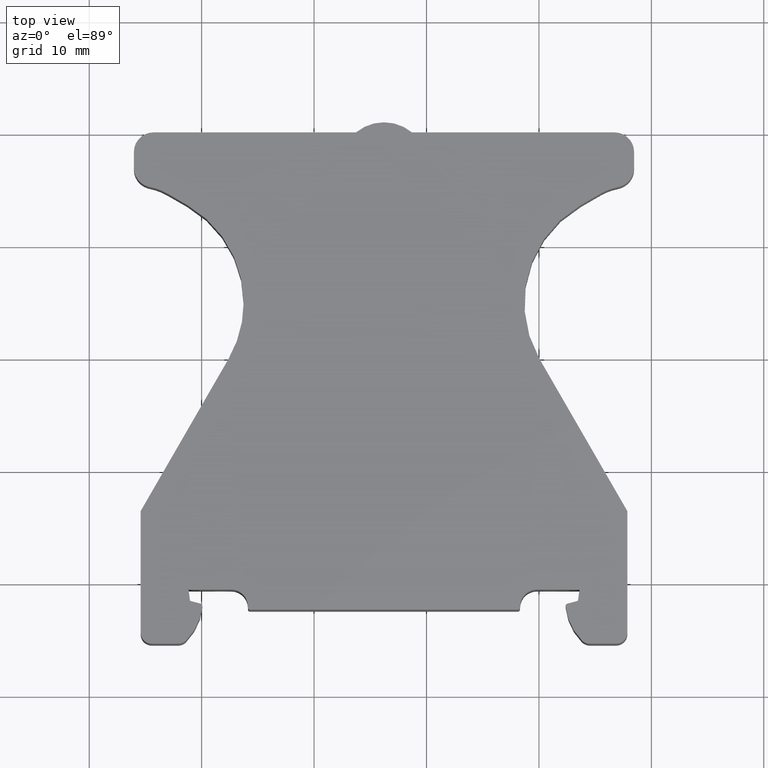
[diagram: clean part render]
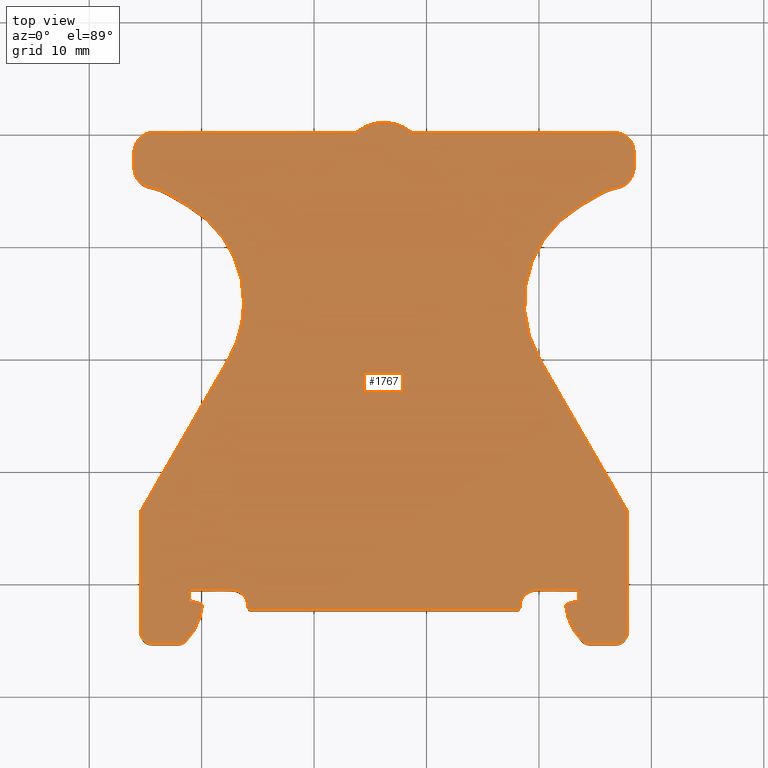
[diagram: same view with one face highlighted and labeled with its STEP entity id]
A machine part, top view. The second image highlights one B-rep face of the part: STEP entity #1767.
In plain terms, the highlighted planar face has unit normal (0, 0, 1).
Its self-contained STEP definition (entity closure, byte-faithful):
#1 = CARTESIAN_POINT ( 'NONE',  ( 1758.969868390070100, 548.3941624297320900, 10.00000000000000000 ) ) ;
#2 = CARTESIAN_POINT ( 'NONE',  ( 1792.523368370729700, 548.1405663962840400, 10.00000000000000000 ) ) ;
#4 = CARTESIAN_POINT ( 'NONE',  ( 1793.606425861842100, 549.3941131315810900, 10.00000000000000000 ) ) ;
#6 = CARTESIAN_POINT ( 'NONE',  ( 1760.063687518259900, 547.9282140013140200, 10.00000000000000000 ) ) ;
#7 = CARTESIAN_POINT ( 'NONE',  ( 1794.531527963769800, 544.5720436728439600, 10.00000000000000000 ) ) ;
#8 = CARTESIAN_POINT ( 'NONE',  ( 1762.619791743365100, 549.3941690927810000, 10.00000000000000000 ) ) ;
#9 = CARTESIAN_POINT ( 'NONE',  ( 1757.908208816370000, 544.5720436728439600, 10.00000000000000000 ) ) ;
#11 = CARTESIAN_POINT ( 'NONE',  ( 1753.969868390069900, 588.3165154542080000, 10.00000000000000000 ) ) ;
#12 = CARTESIAN_POINT ( 'NONE',  ( 1793.469868390070100, 548.3941624297320900, 10.00000000000000000 ) ) ;
#13 = CARTESIAN_POINT ( 'NONE',  ( 1796.869850691134800, 544.5720436728429400, 10.00000000000000000 ) ) ;
#17 = CARTESIAN_POINT ( 'NONE',  ( 1792.375128774348000, 547.9473803185910600, 10.00000000000000000 ) ) ;
#19 = CARTESIAN_POINT ( 'NONE',  ( 1755.569886089010000, 544.5720436728429400, 10.00000000000000000 ) ) ;
#20 = CARTESIAN_POINT ( 'NONE',  ( 1773.727881231209700, 590.0665154542080000, 10.00000000000000000 ) ) ;
#24 = CARTESIAN_POINT ( 'NONE',  ( 1797.232615314785300, 585.2433177398911500, 10.00000000000000000 ) ) ;
#25 = CARTESIAN_POINT ( 'NONE',  ( 1754.569886089005200, 545.5720436728429400, 10.00000000000000000 ) ) ;
#26 = CARTESIAN_POINT ( 'NONE',  ( 1788.319825420455100, 547.8941690943850100, 10.00000000000000000 ) ) ;
#29 = CARTESIAN_POINT ( 'NONE',  ( 1788.319825420455100, 547.7941596898959900, 10.00000000000000000 ) ) ;
#30 = CARTESIAN_POINT ( 'NONE',  ( 1764.319813912180100, 547.5941596898959500, 10.00000000000000000 ) ) ;
#33 = CARTESIAN_POINT ( 'NONE',  ( 1754.569886089005200, 556.3710689303485400, 10.00000000000000000 ) ) ;
#37 = CARTESIAN_POINT ( 'NONE',  ( 1798.469868390069900, 588.3165154542080000, 10.00000000000000000 ) ) ;
#38 = CARTESIAN_POINT ( 'NONE',  ( 1797.869850691135100, 556.3710689303579800, 10.00000000000000000 ) ) ;
#39 = CARTESIAN_POINT ( 'NONE',  ( 1788.119825420455100, 547.5941596898959500, 10.00000000000000000 ) ) ;
#44 = CARTESIAN_POINT ( 'NONE',  ( 1755.389281030210000, 585.1980242562377700, 10.00000000000000000 ) ) ;
#46 = CARTESIAN_POINT ( 'NONE',  ( 1764.119813912180000, 547.8941690929449400, 10.00000000000000000 ) ) ;
#47 = CARTESIAN_POINT ( 'NONE',  ( 1755.284639089905100, 585.2215005704152900, 10.00000000000000000 ) ) ;
#48 = CARTESIAN_POINT ( 'NONE',  ( 1753.969868390069900, 586.9165154542080200, 10.00000000000000000 ) ) ;
#51 = CARTESIAN_POINT ( 'NONE',  ( 1758.613586093785000, 544.8632116077490100, 10.00000000000000000 ) ) ;
#53 = CARTESIAN_POINT ( 'NONE',  ( 1789.819847589275000, 549.3941690942209600, 10.00000000000000000 ) ) ;
#54 = CARTESIAN_POINT ( 'NONE',  ( 1759.916370373820200, 548.1405658699590000, 10.00000000000000000 ) ) ;
#59 = CARTESIAN_POINT ( 'NONE',  ( 1793.826150686354800, 544.8632116077479800, 10.00000000000000000 ) ) ;
#61 = CARTESIAN_POINT ( 'NONE',  ( 1796.719868390070100, 590.0665154542080000, 10.00000000000000000 ) ) ;
#64 = CARTESIAN_POINT ( 'NONE',  ( 1755.719868390069900, 590.0665154542080000, 10.00000000000000000 ) ) ;
#99 = EDGE_LOOP ( 'NONE', ( #299, #207, #250, #249, #235, #255, #227, #308, #287, #306, #252, #265, #311, #198, #276, #244, #191, #236, #195, #302, #238, #215, #202, #222, #194, #196, #248, #204, #275, #213, #241, #209, #197, #225, #233, #216, #217, #296, #290, #289, #312, #355, #271, #369, #379, #370, #372, #349 ) ) ;
#191 = ORIENTED_EDGE ( 'NONE', *, *, #867, .T. ) ;
#194 = ORIENTED_EDGE ( 'NONE', *, *, #863, .T. ) ;
#195 = ORIENTED_EDGE ( 'NONE', *, *, #839, .F. ) ;
#196 = ORIENTED_EDGE ( 'NONE', *, *, #894, .T. ) ;
#197 = ORIENTED_EDGE ( 'NONE', *, *, #868, .T. ) ;
#198 = ORIENTED_EDGE ( 'NONE', *, *, #950, .T. ) ;
#202 = ORIENTED_EDGE ( 'NONE', *, *, #865, .T. ) ;
#204 = ORIENTED_EDGE ( 'NONE', *, *, #821, .T. ) ;
#207 = ORIENTED_EDGE ( 'NONE', *, *, #864, .T. ) ;
#209 = ORIENTED_EDGE ( 'NONE', *, *, #822, .T. ) ;
#213 = ORIENTED_EDGE ( 'NONE', *, *, #853, .T. ) ;
#215 = ORIENTED_EDGE ( 'NONE', *, *, #927, .F. ) ;
#216 = ORIENTED_EDGE ( 'NONE', *, *, #825, .T. ) ;
#217 = ORIENTED_EDGE ( 'NONE', *, *, #891, .T. ) ;
#222 = ORIENTED_EDGE ( 'NONE', *, *, #840, .T. ) ;
#225 = ORIENTED_EDGE ( 'NONE', *, *, #828, .T. ) ;
#227 = ORIENTED_EDGE ( 'NONE', *, *, #842, .T. ) ;
#233 = ORIENTED_EDGE ( 'NONE', *, *, #870, .T. ) ;
#235 = ORIENTED_EDGE ( 'NONE', *, *, #883, .F. ) ;
#236 = ORIENTED_EDGE ( 'NONE', *, *, #996, .T. ) ;
#238 = ORIENTED_EDGE ( 'NONE', *, *, #934, .F. ) ;
#241 = ORIENTED_EDGE ( 'NONE', *, *, #887, .T. ) ;
#244 = ORIENTED_EDGE ( 'NONE', *, *, #817, .T. ) ;
#248 = ORIENTED_EDGE ( 'NONE', *, *, #860, .T. ) ;
#249 = ORIENTED_EDGE ( 'NONE', *, *, #931, .T. ) ;
#250 = ORIENTED_EDGE ( 'NONE', *, *, #911, .F. ) ;
#252 = ORIENTED_EDGE ( 'NONE', *, *, #974, .T. ) ;
#255 = ORIENTED_EDGE ( 'NONE', *, *, #979, .T. ) ;
#265 = ORIENTED_EDGE ( 'NONE', *, *, #871, .T. ) ;
#271 = ORIENTED_EDGE ( 'NONE', *, *, #824, .T. ) ;
#275 = ORIENTED_EDGE ( 'NONE', *, *, #826, .T. ) ;
#276 = ORIENTED_EDGE ( 'NONE', *, *, #963, .T. ) ;
#287 = ORIENTED_EDGE ( 'NONE', *, *, #999, .T. ) ;
#289 = ORIENTED_EDGE ( 'NONE', *, *, #836, .T. ) ;
#290 = ORIENTED_EDGE ( 'NONE', *, *, #835, .T. ) ;
#296 = ORIENTED_EDGE ( 'NONE', *, *, #880, .T. ) ;
#299 = ORIENTED_EDGE ( 'NONE', *, *, #885, .T. ) ;
#302 = ORIENTED_EDGE ( 'NONE', *, *, #939, .T. ) ;
#306 = ORIENTED_EDGE ( 'NONE', *, *, #970, .T. ) ;
#308 = ORIENTED_EDGE ( 'NONE', *, *, #1002, .T. ) ;
#311 = ORIENTED_EDGE ( 'NONE', *, *, #955, .T. ) ;
#312 = ORIENTED_EDGE ( 'NONE', *, *, #823, .T. ) ;
#349 = ORIENTED_EDGE ( 'NONE', *, *, #861, .T. ) ;
#355 = ORIENTED_EDGE ( 'NONE', *, *, #882, .T. ) ;
#369 = ORIENTED_EDGE ( 'NONE', *, *, #925, .T. ) ;
#370 = ORIENTED_EDGE ( 'NONE', *, *, #892, .T. ) ;
#372 = ORIENTED_EDGE ( 'NONE', *, *, #878, .T. ) ;
#379 = ORIENTED_EDGE ( 'NONE', *, *, #841, .T. ) ;
#385 = VERTEX_POINT ( 'NONE', #513 ) ;
#386 = VERTEX_POINT ( 'NONE', #532 ) ;
#391 = VERTEX_POINT ( 'NONE', #547 ) ;
#392 = VERTEX_POINT ( 'NONE', #537 ) ;
#396 = VERTEX_POINT ( 'NONE', #530 ) ;
#405 = VERTEX_POINT ( 'NONE', #549 ) ;
#406 = VERTEX_POINT ( 'NONE', #542 ) ;
#408 = VERTEX_POINT ( 'NONE', #531 ) ;
#409 = VERTEX_POINT ( 'NONE', #526 ) ;
#420 = VERTEX_POINT ( 'NONE', #517 ) ;
#426 = VERTEX_POINT ( 'NONE', #509 ) ;
#428 = VERTEX_POINT ( 'NONE', #534 ) ;
#432 = VERTEX_POINT ( 'NONE', #512 ) ;
#433 = VERTEX_POINT ( 'NONE', #518 ) ;
#445 = VERTEX_POINT ( 'NONE', #522 ) ;
#446 = VERTEX_POINT ( 'NONE', #523 ) ;
#450 = VERTEX_POINT ( 'NONE', #11 ) ;
#454 = VERTEX_POINT ( 'NONE', #1 ) ;
#455 = VERTEX_POINT ( 'NONE', #2 ) ;
#456 = VERTEX_POINT ( 'NONE', #6 ) ;
#457 = VERTEX_POINT ( 'NONE', #7 ) ;
#458 = VERTEX_POINT ( 'NONE', #8 ) ;
#459 = VERTEX_POINT ( 'NONE', #9 ) ;
#460 = VERTEX_POINT ( 'NONE', #4 ) ;
#461 = VERTEX_POINT ( 'NONE', #54 ) ;
#462 = VERTEX_POINT ( 'NONE', #19 ) ;
#463 = VERTEX_POINT ( 'NONE', #53 ) ;
#465 = VERTEX_POINT ( 'NONE', #30 ) ;
#467 = VERTEX_POINT ( 'NONE', #51 ) ;
#468 = VERTEX_POINT ( 'NONE', #29 ) ;
#469 = VERTEX_POINT ( 'NONE', #39 ) ;
#470 = VERTEX_POINT ( 'NONE', #13 ) ;
#471 = VERTEX_POINT ( 'NONE', #20 ) ;
#472 = VERTEX_POINT ( 'NONE', #33 ) ;
#475 = VERTEX_POINT ( 'NONE', #59 ) ;
#477 = VERTEX_POINT ( 'NONE', #24 ) ;
#482 = VERTEX_POINT ( 'NONE', #38 ) ;
#483 = VERTEX_POINT ( 'NONE', #48 ) ;
#494 = VERTEX_POINT ( 'NONE', #37 ) ;
#497 = VERTEX_POINT ( 'NONE', #61 ) ;
#498 = VERTEX_POINT ( 'NONE', #44 ) ;
#499 = VERTEX_POINT ( 'NONE', #25 ) ;
#501 = VERTEX_POINT ( 'NONE', #46 ) ;
#502 = VERTEX_POINT ( 'NONE', #47 ) ;
#507 = VERTEX_POINT ( 'NONE', #64 ) ;
#509 = CARTESIAN_POINT ( 'NONE',  ( 1758.734703294374900, 583.5847439342931000, 10.00000000000000000 ) ) ;
#512 = CARTESIAN_POINT ( 'NONE',  ( 1797.155097690235200, 585.2215005704152900, 10.00000000000000000 ) ) ;
#513 = CARTESIAN_POINT ( 'NONE',  ( 1795.494991063820000, 584.6181764238168600, 10.00000000000000000 ) ) ;
#515 = VERTEX_POINT ( 'NONE', #26 ) ;
#517 = CARTESIAN_POINT ( 'NONE',  ( 1756.944745716330100, 584.6181764238158400, 10.00000000000000000 ) ) ;
#518 = CARTESIAN_POINT ( 'NONE',  ( 1797.050455749929800, 585.1980242562373200, 10.00000000000000000 ) ) ;
#522 = CARTESIAN_POINT ( 'NONE',  ( 1758.833310918298400, 549.3941131315806400, 10.00000000000000000 ) ) ;
#523 = CARTESIAN_POINT ( 'NONE',  ( 1764.119813912180000, 547.7941596898959900, 10.00000000000000000 ) ) ;
#525 = VERTEX_POINT ( 'NONE', #12 ) ;
#526 = CARTESIAN_POINT ( 'NONE',  ( 1778.711855548960800, 590.0665154542080000, 10.00000000000000000 ) ) ;
#530 = CARTESIAN_POINT ( 'NONE',  ( 1793.705033485775600, 583.5847439342878700, 10.00000000000000000 ) ) ;
#531 = CARTESIAN_POINT ( 'NONE',  ( 1797.869850691135100, 545.5720436728429400, 10.00000000000000000 ) ) ;
#532 = CARTESIAN_POINT ( 'NONE',  ( 1790.044779447925100, 569.9244898964381000, 10.00000000000000000 ) ) ;
#534 = CARTESIAN_POINT ( 'NONE',  ( 1792.376049261884900, 547.9282140013149300, 10.00000000000000000 ) ) ;
#537 = CARTESIAN_POINT ( 'NONE',  ( 1798.469868390069900, 586.9165154542080200, 10.00000000000000000 ) ) ;
#538 = VERTEX_POINT ( 'NONE', #17 ) ;
#542 = CARTESIAN_POINT ( 'NONE',  ( 1755.207121465350200, 585.2433177398926300, 10.00000000000000000 ) ) ;
#547 = CARTESIAN_POINT ( 'NONE',  ( 1763.734703294375500, 574.9244898964481100, 10.00000000000000000 ) ) ;
#549 = CARTESIAN_POINT ( 'NONE',  ( 1762.394957332220000, 569.9244898964481100, 10.00000000000000000 ) ) ;
#615 = CARTESIAN_POINT ( 'NONE',  ( 1796.719868390070100, 588.3165154542080000, 10.00000000000000000 ) ) ;
#616 = DIRECTION ( 'NONE',  ( 0.0000000000000000000, 0.0000000000000000000, 1.000000000000000000 ) ) ;
#618 = DIRECTION ( 'NONE',  ( 1.000000000000000000, 0.0000000000000000000, 0.0000000000000000000 ) ) ;
#620 = CARTESIAN_POINT ( 'NONE',  ( 1753.969868390069900, 588.3165154542080000, 10.00000000000000000 ) ) ;
#635 = DIRECTION ( 'NONE',  ( 0.0000000000000000000, -1.000000000000000000, 0.0000000000000000000 ) ) ;
#637 = LINE ( 'NONE', #620, #1182 ) ;
#662 = LINE ( 'NONE', #665, #1159 ) ;
#663 = DIRECTION ( 'NONE',  ( 1.000000000000000000, 0.0000000000000000000, 0.0000000000000000000 ) ) ;
#665 = CARTESIAN_POINT ( 'NONE',  ( 1794.469868390069900, 590.0665154542080000, 10.00000000000000000 ) ) ;
#672 = CARTESIAN_POINT ( 'NONE',  ( 1796.719868390070100, 586.9165154542080200, 10.00000000000000000 ) ) ;
#680 = DIRECTION ( 'NONE',  ( -0.0000000000000000000, 0.0000000000000000000, 1.000000000000000000 ) ) ;
#688 = DIRECTION ( 'NONE',  ( -1.000000000000000000, 0.0000000000000000000, 0.0000000000000000000 ) ) ;
#700 = DIRECTION ( 'NONE',  ( 1.000000000000000000, 0.0000000000000000000, 0.0000000000000000000 ) ) ;
#703 = LINE ( 'NONE', #766, #1156 ) ;
#713 = CARTESIAN_POINT ( 'NONE',  ( 1755.719868390069900, 586.9165154542080200, 10.00000000000000000 ) ) ;
#720 = DIRECTION ( 'NONE',  ( -0.0000000000000000000, 0.0000000000000000000, 1.000000000000000000 ) ) ;
#746 = DIRECTION ( 'NONE',  ( 0.0000000000000000000, 1.000000000000000000, 0.0000000000000000000 ) ) ;
#753 = DIRECTION ( 'NONE',  ( 1.000000000000000000, 0.0000000000000000000, 0.0000000000000000000 ) ) ;
#766 = CARTESIAN_POINT ( 'NONE',  ( 1798.469868390069900, 588.3165154542080000, 10.00000000000000000 ) ) ;
#767 = CARTESIAN_POINT ( 'NONE',  ( 1796.719868390070100, 586.9165154542080200, 10.00000000000000000 ) ) ;
#775 = DIRECTION ( 'NONE',  ( 0.0000000000000000000, 0.0000000000000000000, 1.000000000000000000 ) ) ;
#799 = PLANE ( 'NONE',  #1241 ) ;
#808 = FACE_OUTER_BOUND ( 'NONE', #99, .T. ) ;
#811 = DIRECTION ( 'NONE',  ( 1.000000000000000000, 0.0000000000000000000, 0.0000000000000000000 ) ) ;
#812 = CARTESIAN_POINT ( 'NONE',  ( 1755.719868390069900, 588.3165154542080000, 10.00000000000000000 ) ) ;
#814 = DIRECTION ( 'NONE',  ( 0.0000000000000000000, 0.0000000000000000000, 1.000000000000000000 ) ) ;
#817 = EDGE_CURVE ( 'NONE', #483, #406, #1213, .T. ) ;
#821 = EDGE_CURVE ( 'NONE', #467, #456, #1189, .T. ) ;
#822 = EDGE_CURVE ( 'NONE', #445, #458, #1588, .T. ) ;
#823 = EDGE_CURVE ( 'NONE', #460, #525, #1625, .T. ) ;
#824 = EDGE_CURVE ( 'NONE', #455, #538, #1206, .T. ) ;
#825 = EDGE_CURVE ( 'NONE', #465, #469, #1609, .T. ) ;
#826 = EDGE_CURVE ( 'NONE', #456, #461, #1212, .T. ) ;
#828 = EDGE_CURVE ( 'NONE', #501, #446, #1624, .T. ) ;
#835 = EDGE_CURVE ( 'NONE', #515, #463, #1224, .T. ) ;
#836 = EDGE_CURVE ( 'NONE', #463, #460, #1641, .T. ) ;
#839 = EDGE_CURVE ( 'NONE', #420, #498, #1251, .T. ) ;
#840 = EDGE_CURVE ( 'NONE', #472, #499, #1661, .T. ) ;
#841 = EDGE_CURVE ( 'NONE', #428, #475, #1236, .T. ) ;
#842 = EDGE_CURVE ( 'NONE', #432, #477, #1629, .T. ) ;
#853 = EDGE_CURVE ( 'NONE', #461, #454, #1680, .T. ) ;
#860 = EDGE_CURVE ( 'NONE', #459, #467, #1246, .T. ) ;
#861 = EDGE_CURVE ( 'NONE', #470, #408, #1008, .T. ) ;
#863 = EDGE_CURVE ( 'NONE', #499, #462, #1012, .T. ) ;
#864 = EDGE_CURVE ( 'NONE', #482, #386, #1288, .T. ) ;
#865 = EDGE_CURVE ( 'NONE', #405, #472, #1285, .T. ) ;
#867 = EDGE_CURVE ( 'NONE', #406, #502, #1299, .T. ) ;
#868 = EDGE_CURVE ( 'NONE', #458, #501, #1050, .T. ) ;
#870 = EDGE_CURVE ( 'NONE', #446, #465, #1029, .T. ) ;
#871 = EDGE_CURVE ( 'NONE', #409, #471, #1055, .T. ) ;
#878 = EDGE_CURVE ( 'NONE', #457, #470, #1349, .T. ) ;
#880 = EDGE_CURVE ( 'NONE', #468, #515, #1343, .T. ) ;
#882 = EDGE_CURVE ( 'NONE', #525, #455, #1307, .T. ) ;
#883 = EDGE_CURVE ( 'NONE', #433, #385, #1056, .T. ) ;
#885 = EDGE_CURVE ( 'NONE', #408, #482, #1310, .T. ) ;
#887 = EDGE_CURVE ( 'NONE', #454, #445, #1317, .T. ) ;
#891 = EDGE_CURVE ( 'NONE', #469, #468, #1016, .T. ) ;
#892 = EDGE_CURVE ( 'NONE', #475, #457, #1060, .T. ) ;
#894 = EDGE_CURVE ( 'NONE', #462, #459, #1398, .T. ) ;
#911 = EDGE_CURVE ( 'NONE', #396, #386, #1053, .T. ) ;
#925 = EDGE_CURVE ( 'NONE', #538, #428, #1103, .T. ) ;
#927 = EDGE_CURVE ( 'NONE', #405, #391, #1092, .T. ) ;
#931 = EDGE_CURVE ( 'NONE', #396, #385, #1507, .T. ) ;
#934 = EDGE_CURVE ( 'NONE', #391, #426, #1110, .T. ) ;
#939 = EDGE_CURVE ( 'NONE', #420, #426, #1506, .T. ) ;
#950 = EDGE_CURVE ( 'NONE', #507, #450, #1082, .T. ) ;
#955 = EDGE_CURVE ( 'NONE', #471, #507, #1560, .T. ) ;
#963 = EDGE_CURVE ( 'NONE', #450, #483, #637, .T. ) ;
#970 = EDGE_CURVE ( 'NONE', #494, #497, #1145, .T. ) ;
#974 = EDGE_CURVE ( 'NONE', #497, #409, #662, .T. ) ;
#979 = EDGE_CURVE ( 'NONE', #433, #432, #1157, .T. ) ;
#996 = EDGE_CURVE ( 'NONE', #502, #498, #1160, .T. ) ;
#999 = EDGE_CURVE ( 'NONE', #392, #494, #703, .T. ) ;
#1002 = EDGE_CURVE ( 'NONE', #477, #392, #1136, .T. ) ;
#1008 = CIRCLE ( 'NONE', #1020, 0.9999999999998898700 ) ;
#1010 = AXIS2_PLACEMENT_3D ( 'NONE', #1286, #1287, #1306 ) ;
#1012 = CIRCLE ( 'NONE', #1058, 0.9999999999998898700 ) ;
#1014 = VECTOR ( 'NONE', #1399, 1000.000000000000000 ) ;
#1016 = CIRCLE ( 'NONE', #1023, 0.2000000000002000200 ) ;
#1019 = VECTOR ( 'NONE', #1262, 1000.000000000000100 ) ;
#1020 = AXIS2_PLACEMENT_3D ( 'NONE', #1295, #1290, #1291 ) ;
#1022 = VECTOR ( 'NONE', #1327, 1000.000000000000000 ) ;
#1023 = AXIS2_PLACEMENT_3D ( 'NONE', #1367, #1395, #1388 ) ;
#1029 = CIRCLE ( 'NONE', #1010, 0.2000000000002000200 ) ;
#1038 = AXIS2_PLACEMENT_3D ( 'NONE', #1337, #1352, #1355 ) ;
#1041 = VECTOR ( 'NONE', #1308, 1000.000000000000000 ) ;
#1042 = VECTOR ( 'NONE', #1293, 999.9999999999998900 ) ;
#1047 = AXIS2_PLACEMENT_3D ( 'NONE', #1271, #1298, #1300 ) ;
#1050 = CIRCLE ( 'NONE', #1047, 1.499999999999834800 ) ;
#1051 = VECTOR ( 'NONE', #1311, 1000.000000000000000 ) ;
#1053 = CIRCLE ( 'NONE', #1054, 10.00000000000134100 ) ;
#1054 = AXIS2_PLACEMENT_3D ( 'NONE', #1428, #1449, #1407 ) ;
#1055 = CIRCLE ( 'NONE', #1063, 3.900000000000014600 ) ;
#1056 = CIRCLE ( 'NONE', #1038, 5.000000000000115500 ) ;
#1058 = AXIS2_PLACEMENT_3D ( 'NONE', #1279, #1296, #1292 ) ;
#1059 = VECTOR ( 'NONE', #1341, 1000.000000000000100 ) ;
#1060 = CIRCLE ( 'NONE', #1061, 0.9999999999998898700 ) ;
#1061 = AXIS2_PLACEMENT_3D ( 'NONE', #1385, #1375, #1394 ) ;
#1062 = VECTOR ( 'NONE', #1280, 1000.000000000000100 ) ;
#1063 = AXIS2_PLACEMENT_3D ( 'NONE', #1289, #1260, #1261 ) ;
#1066 = VECTOR ( 'NONE', #1335, 1000.000000000000100 ) ;
#1082 = CIRCLE ( 'NONE', #1108, 1.749999999999918300 ) ;
#1087 = VECTOR ( 'NONE', #1556, 1000.000000000000000 ) ;
#1089 = AXIS2_PLACEMENT_3D ( 'NONE', #1535, #1504, #1509 ) ;
#1092 = CIRCLE ( 'NONE', #1116, 10.00000000000067500 ) ;
#1099 = AXIS2_PLACEMENT_3D ( 'NONE', #1485, #1459, #1483 ) ;
#1102 = VECTOR ( 'NONE', #1539, 999.9999999999998900 ) ;
#1103 = CIRCLE ( 'NONE', #1099, 0.1999999999970913900 ) ;
#1104 = VECTOR ( 'NONE', #1501, 1000.000000000000100 ) ;
#1108 = AXIS2_PLACEMENT_3D ( 'NONE', #1558, #1564, #1575 ) ;
#1110 = CIRCLE ( 'NONE', #1089, 10.00000000000067500 ) ;
#1116 = AXIS2_PLACEMENT_3D ( 'NONE', #1475, #1461, #1470 ) ;
#1136 = CIRCLE ( 'NONE', #1153, 1.749999999999918300 ) ;
#1145 = CIRCLE ( 'NONE', #1146, 1.749999999999918300 ) ;
#1146 = AXIS2_PLACEMENT_3D ( 'NONE', #615, #616, #618 ) ;
#1151 = AXIS2_PLACEMENT_3D ( 'NONE', #713, #720, #700 ) ;
#1153 = AXIS2_PLACEMENT_3D ( 'NONE', #767, #775, #753 ) ;
#1156 = VECTOR ( 'NONE', #746, 1000.000000000000000 ) ;
#1157 = CIRCLE ( 'NONE', #1177, 1.750000000000140300 ) ;
#1159 = VECTOR ( 'NONE', #688, 1000.000000000000000 ) ;
#1160 = CIRCLE ( 'NONE', #1151, 1.749999999999918300 ) ;
#1177 = AXIS2_PLACEMENT_3D ( 'NONE', #672, #680, #663 ) ;
#1182 = VECTOR ( 'NONE', #635, 1000.000000000000000 ) ;
#1189 = CIRCLE ( 'NONE', #1203, 5.000000000000559600 ) ;
#1190 = AXIS2_PLACEMENT_3D ( 'NONE', #1614, #1617, #1620 ) ;
#1197 = VECTOR ( 'NONE', #1611, 1000.000000000000100 ) ;
#1200 = VECTOR ( 'NONE', #1589, 1000.000000000000100 ) ;
#1203 = AXIS2_PLACEMENT_3D ( 'NONE', #1593, #1602, #1597 ) ;
#1204 = VECTOR ( 'NONE', #1622, 1000.000000000000000 ) ;
#1206 = CIRCLE ( 'NONE', #1190, 0.1999999999970913900 ) ;
#1212 = CIRCLE ( 'NONE', #1216, 0.2000000000024204600 ) ;
#1213 = CIRCLE ( 'NONE', #1215, 1.749999999999918300 ) ;
#1215 = AXIS2_PLACEMENT_3D ( 'NONE', #1616, #1612, #1619 ) ;
#1216 = AXIS2_PLACEMENT_3D ( 'NONE', #1610, #1627, #1587 ) ;
#1217 = VECTOR ( 'NONE', #1591, 1000.000000000000000 ) ;
#1219 = AXIS2_PLACEMENT_3D ( 'NONE', #1731, #1732, #1734 ) ;
#1222 = VECTOR ( 'NONE', #1685, 1000.000000000000100 ) ;
#1224 = CIRCLE ( 'NONE', #1234, 1.500000000000056800 ) ;
#1226 = VECTOR ( 'NONE', #1657, 999.9999999999998900 ) ;
#1234 = AXIS2_PLACEMENT_3D ( 'NONE', #1644, #1650, #1663 ) ;
#1236 = CIRCLE ( 'NONE', #1252, 5.000000000000559600 ) ;
#1237 = VECTOR ( 'NONE', #1643, 1000.000000000000200 ) ;
#1241 = AXIS2_PLACEMENT_3D ( 'NONE', #812, #814, #811 ) ;
#1243 = VECTOR ( 'NONE', #1672, 1000.000000000000000 ) ;
#1246 = CIRCLE ( 'NONE', #1219, 1.000000000000111900 ) ;
#1249 = AXIS2_PLACEMENT_3D ( 'NONE', #1659, #1655, #1647 ) ;
#1251 = CIRCLE ( 'NONE', #1249, 4.999999999999671400 ) ;
#1252 = AXIS2_PLACEMENT_3D ( 'NONE', #1632, #1633, #1635 ) ;
#1260 = DIRECTION ( 'NONE',  ( 0.0000000000000000000, 0.0000000000000000000, 1.000000000000000000 ) ) ;
#1261 = DIRECTION ( 'NONE',  ( 1.000000000000000000, 0.0000000000000000000, 0.0000000000000000000 ) ) ;
#1262 = DIRECTION ( 'NONE',  ( 0.9626012838604365300, -0.2709220705484127200, 0.0000000000000000000 ) ) ;
#1271 = CARTESIAN_POINT ( 'NONE',  ( 1762.619813912180000, 547.8941690929449400, 10.00000000000000000 ) ) ;
#1275 = CARTESIAN_POINT ( 'NONE',  ( 1792.088878762175700, 574.8630261073610700, 10.00000000000000000 ) ) ;
#1279 = CARTESIAN_POINT ( 'NONE',  ( 1755.569886089005000, 545.5720436728429400, 10.00000000000000000 ) ) ;
#1280 = DIRECTION ( 'NONE',  ( -0.4999999999999909000, -0.8660254037844438100, 0.0000000000000000000 ) ) ;
#1285 = LINE ( 'NONE', #1304, #1062 ) ;
#1286 = CARTESIAN_POINT ( 'NONE',  ( 1764.319813912180100, 547.7941596898959900, 10.00000000000000000 ) ) ;
#1287 = DIRECTION ( 'NONE',  ( 0.0000000000000000000, 0.0000000000000000000, 1.000000000000000000 ) ) ;
#1288 = LINE ( 'NONE', #1294, #1042 ) ;
#1289 = CARTESIAN_POINT ( 'NONE',  ( 1776.219868390085100, 587.0665154542080000, 10.00000000000000000 ) ) ;
#1290 = DIRECTION ( 'NONE',  ( 0.0000000000000000000, 0.0000000000000000000, 1.000000000000000000 ) ) ;
#1291 = DIRECTION ( 'NONE',  ( 1.000000000000000000, 0.0000000000000000000, 0.0000000000000000000 ) ) ;
#1292 = DIRECTION ( 'NONE',  ( 1.000000000000000000, 0.0000000000000000000, 0.0000000000000000000 ) ) ;
#1293 = DIRECTION ( 'NONE',  ( -0.4999999999999928900, 0.8660254037844428200, 0.0000000000000000000 ) ) ;
#1294 = CARTESIAN_POINT ( 'NONE',  ( 1796.349458461799900, 559.0044655189980200, 10.00000000000000000 ) ) ;
#1295 = CARTESIAN_POINT ( 'NONE',  ( 1796.869850691134800, 545.5720436728429400, 10.00000000000000000 ) ) ;
#1296 = DIRECTION ( 'NONE',  ( 0.0000000000000000000, 0.0000000000000000000, 1.000000000000000000 ) ) ;
#1298 = DIRECTION ( 'NONE',  ( 0.0000000000000000000, 0.0000000000000000000, -1.000000000000000000 ) ) ;
#1299 = LINE ( 'NONE', #1275, #1019 ) ;
#1300 = DIRECTION ( 'NONE',  ( 1.000000000000000000, 0.0000000000000000000, 0.0000000000000000000 ) ) ;
#1304 = CARTESIAN_POINT ( 'NONE',  ( 1756.090278318350100, 559.0044655190079100, 10.00000000000000000 ) ) ;
#1306 = DIRECTION ( 'NONE',  ( 1.000000000000000000, 0.0000000000000000000, 0.0000000000000000000 ) ) ;
#1307 = LINE ( 'NONE', #1316, #1066 ) ;
#1308 = DIRECTION ( 'NONE',  ( 0.0000000000000000000, 1.000000000000000000, 0.0000000000000000000 ) ) ;
#1310 = LINE ( 'NONE', #1312, #1041 ) ;
#1311 = DIRECTION ( 'NONE',  ( 0.0000000000000000000, 1.000000000000000000, 0.0000000000000000000 ) ) ;
#1312 = CARTESIAN_POINT ( 'NONE',  ( 1797.869850691135100, 548.5680525183551000, 10.00000000000000000 ) ) ;
#1316 = CARTESIAN_POINT ( 'NONE',  ( 1792.523368370729700, 548.1405663962840400, 10.00000000000000000 ) ) ;
#1317 = LINE ( 'NONE', #1350, #1059 ) ;
#1327 = DIRECTION ( 'NONE',  ( 1.000000000000000000, -5.697535305794220700E-013, 0.0000000000000000000 ) ) ;
#1331 = CARTESIAN_POINT ( 'NONE',  ( 1796.869850691134800, 544.5720436728429400, 10.00000000000000000 ) ) ;
#1333 = CARTESIAN_POINT ( 'NONE',  ( 1788.319825420455100, 547.7941596898959900, 10.00000000000000000 ) ) ;
#1335 = DIRECTION ( 'NONE',  ( -0.9659303885068852800, -0.2588020180735416400, 0.0000000000000000000 ) ) ;
#1337 = CARTESIAN_POINT ( 'NONE',  ( 1797.994991063820000, 580.2880494048949900, 10.00000000000000000 ) ) ;
#1341 = DIRECTION ( 'NONE',  ( -0.1353082975648276000, 0.9908035449119608800, 0.0000000000000000000 ) ) ;
#1343 = LINE ( 'NONE', #1333, #1051 ) ;
#1349 = LINE ( 'NONE', #1331, #1022 ) ;
#1350 = CARTESIAN_POINT ( 'NONE',  ( 1758.969868390070100, 548.3941624297320900, 10.00000000000000000 ) ) ;
#1352 = DIRECTION ( 'NONE',  ( -0.0000000000000000000, 0.0000000000000000000, 1.000000000000000000 ) ) ;
#1355 = DIRECTION ( 'NONE',  ( 1.000000000000000000, 0.0000000000000000000, 0.0000000000000000000 ) ) ;
#1367 = CARTESIAN_POINT ( 'NONE',  ( 1788.119825420455100, 547.7941596898959900, 10.00000000000000000 ) ) ;
#1375 = DIRECTION ( 'NONE',  ( 0.0000000000000000000, 0.0000000000000000000, 1.000000000000000000 ) ) ;
#1377 = CARTESIAN_POINT ( 'NONE',  ( 1755.569886089010000, 544.5720436728429400, 10.00000000000000000 ) ) ;
#1385 = CARTESIAN_POINT ( 'NONE',  ( 1794.531527963769800, 545.5720436728439600, 10.00000000000000000 ) ) ;
#1388 = DIRECTION ( 'NONE',  ( 1.000000000000000000, 0.0000000000000000000, 0.0000000000000000000 ) ) ;
#1394 = DIRECTION ( 'NONE',  ( 1.000000000000000000, 0.0000000000000000000, 0.0000000000000000000 ) ) ;
#1395 = DIRECTION ( 'NONE',  ( 0.0000000000000000000, 0.0000000000000000000, 1.000000000000000000 ) ) ;
#1398 = LINE ( 'NONE', #1377, #1014 ) ;
#1399 = DIRECTION ( 'NONE',  ( 1.000000000000000000, 6.172329914610989500E-013, 0.0000000000000000000 ) ) ;
#1407 = DIRECTION ( 'NONE',  ( 1.000000000000000000, 0.0000000000000000000, 0.0000000000000000000 ) ) ;
#1428 = CARTESIAN_POINT ( 'NONE',  ( 1798.705033485770200, 574.9244898964381000, 10.00000000000000000 ) ) ;
#1449 = DIRECTION ( 'NONE',  ( -0.0000000000000000000, 0.0000000000000000000, 1.000000000000000000 ) ) ;
#1459 = DIRECTION ( 'NONE',  ( 0.0000000000000000000, 0.0000000000000000000, 1.000000000000000000 ) ) ;
#1461 = DIRECTION ( 'NONE',  ( -0.0000000000000000000, 0.0000000000000000000, 1.000000000000000000 ) ) ;
#1470 = DIRECTION ( 'NONE',  ( 1.000000000000000000, 0.0000000000000000000, 0.0000000000000000000 ) ) ;
#1475 = CARTESIAN_POINT ( 'NONE',  ( 1753.734703294374900, 574.9244898964481100, 10.00000000000000000 ) ) ;
#1483 = DIRECTION ( 'NONE',  ( 1.000000000000000000, 0.0000000000000000000, 0.0000000000000000000 ) ) ;
#1485 = CARTESIAN_POINT ( 'NONE',  ( 1792.575128774345100, 547.9473803185910600, 10.00000000000000000 ) ) ;
#1501 = DIRECTION ( 'NONE',  ( 0.8660254037842940500, -0.5000000000002504700, 0.0000000000000000000 ) ) ;
#1504 = DIRECTION ( 'NONE',  ( -0.0000000000000000000, 0.0000000000000000000, 1.000000000000000000 ) ) ;
#1506 = LINE ( 'NONE', #1517, #1104 ) ;
#1507 = LINE ( 'NONE', #1525, #1102 ) ;
#1509 = DIRECTION ( 'NONE',  ( 1.000000000000000000, 0.0000000000000000000, 0.0000000000000000000 ) ) ;
#1517 = CARTESIAN_POINT ( 'NONE',  ( 1800.578681247505100, 559.4261119990724200, 10.00000000000000000 ) ) ;
#1525 = CARTESIAN_POINT ( 'NONE',  ( 1750.836236919663600, 558.8344326968361900, 10.00000000000000000 ) ) ;
#1535 = CARTESIAN_POINT ( 'NONE',  ( 1753.734703294374900, 574.9244898964481100, 10.00000000000000000 ) ) ;
#1539 = DIRECTION ( 'NONE',  ( 0.8660254037829378000, 0.5000000000025995900, 0.0000000000000000000 ) ) ;
#1555 = CARTESIAN_POINT ( 'NONE',  ( 1757.969868390069900, 590.0665154542080000, 10.00000000000000000 ) ) ;
#1556 = DIRECTION ( 'NONE',  ( -1.000000000000000000, 0.0000000000000000000, 0.0000000000000000000 ) ) ;
#1558 = CARTESIAN_POINT ( 'NONE',  ( 1755.719868390069900, 588.3165154542080000, 10.00000000000000000 ) ) ;
#1560 = LINE ( 'NONE', #1555, #1087 ) ;
#1564 = DIRECTION ( 'NONE',  ( 0.0000000000000000000, 0.0000000000000000000, 1.000000000000000000 ) ) ;
#1575 = DIRECTION ( 'NONE',  ( 1.000000000000000000, 0.0000000000000000000, 0.0000000000000000000 ) ) ;
#1587 = DIRECTION ( 'NONE',  ( 1.000000000000000000, 0.0000000000000000000, 0.0000000000000000000 ) ) ;
#1588 = LINE ( 'NONE', #1618, #1200 ) ;
#1589 = DIRECTION ( 'NONE',  ( 0.9999999998907874700, 1.477921145618141100E-005, 0.0000000000000000000 ) ) ;
#1590 = CARTESIAN_POINT ( 'NONE',  ( 1764.119813912180000, 547.7941596898959900, 10.00000000000000000 ) ) ;
#1591 = DIRECTION ( 'NONE',  ( 2.220237279251139900E-012, -1.000000000000000000, 0.0000000000000000000 ) ) ;
#1593 = CARTESIAN_POINT ( 'NONE',  ( 1755.086699706714900, 548.4073719332251400, 10.00000000000000000 ) ) ;
#1597 = DIRECTION ( 'NONE',  ( 1.000000000000000000, 0.0000000000000000000, 0.0000000000000000000 ) ) ;
#1599 = CARTESIAN_POINT ( 'NONE',  ( 1793.469868390070100, 548.3941624297320900, 10.00000000000000000 ) ) ;
#1600 = CARTESIAN_POINT ( 'NONE',  ( 1788.119825420455100, 547.5941596898959500, 10.00000000000000000 ) ) ;
#1602 = DIRECTION ( 'NONE',  ( 0.0000000000000000000, 0.0000000000000000000, 1.000000000000000000 ) ) ;
#1609 = LINE ( 'NONE', #1600, #1204 ) ;
#1610 = CARTESIAN_POINT ( 'NONE',  ( 1759.864608005794900, 547.9473803185910600, 10.00000000000000000 ) ) ;
#1611 = DIRECTION ( 'NONE',  ( -0.1353082975647300100, -0.9908035449119742000, 0.0000000000000000000 ) ) ;
#1612 = DIRECTION ( 'NONE',  ( 0.0000000000000000000, 0.0000000000000000000, 1.000000000000000000 ) ) ;
#1614 = CARTESIAN_POINT ( 'NONE',  ( 1792.575128774345100, 547.9473803185910600, 10.00000000000000000 ) ) ;
#1616 = CARTESIAN_POINT ( 'NONE',  ( 1755.719868390069900, 586.9165154542080200, 10.00000000000000000 ) ) ;
#1617 = DIRECTION ( 'NONE',  ( 0.0000000000000000000, 0.0000000000000000000, 1.000000000000000000 ) ) ;
#1618 = CARTESIAN_POINT ( 'NONE',  ( 1762.168952459380100, 549.3941624297320900, 10.00000000000000000 ) ) ;
#1619 = DIRECTION ( 'NONE',  ( 1.000000000000000000, 0.0000000000000000000, 0.0000000000000000000 ) ) ;
#1620 = DIRECTION ( 'NONE',  ( 1.000000000000000000, 0.0000000000000000000, 0.0000000000000000000 ) ) ;
#1622 = DIRECTION ( 'NONE',  ( 1.000000000000000000, 0.0000000000000000000, 0.0000000000000000000 ) ) ;
#1624 = LINE ( 'NONE', #1590, #1217 ) ;
#1625 = LINE ( 'NONE', #1599, #1197 ) ;
#1627 = DIRECTION ( 'NONE',  ( 0.0000000000000000000, 0.0000000000000000000, 1.000000000000000000 ) ) ;
#1629 = LINE ( 'NONE', #1639, #1237 ) ;
#1632 = CARTESIAN_POINT ( 'NONE',  ( 1797.353037073430000, 548.4073719332241100, 10.00000000000000000 ) ) ;
#1633 = DIRECTION ( 'NONE',  ( 0.0000000000000000000, 0.0000000000000000000, 1.000000000000000000 ) ) ;
#1635 = DIRECTION ( 'NONE',  ( 1.000000000000000000, 0.0000000000000000000, 0.0000000000000000000 ) ) ;
#1639 = CARTESIAN_POINT ( 'NONE',  ( 1759.084727098481200, 574.5066762699749500, 10.00000000000000000 ) ) ;
#1641 = LINE ( 'NONE', #1670, #1226 ) ;
#1643 = DIRECTION ( 'NONE',  ( 0.9626012838557817000, 0.2709220705649516000, 0.0000000000000000000 ) ) ;
#1644 = CARTESIAN_POINT ( 'NONE',  ( 1789.819825420454900, 547.8941690943850100, 10.00000000000000000 ) ) ;
#1647 = DIRECTION ( 'NONE',  ( 1.000000000000000000, 0.0000000000000000000, 0.0000000000000000000 ) ) ;
#1650 = DIRECTION ( 'NONE',  ( 0.0000000000000000000, 0.0000000000000000000, -1.000000000000000000 ) ) ;
#1652 = CARTESIAN_POINT ( 'NONE',  ( 1754.569886089005200, 548.5680525183551000, 10.00000000000000000 ) ) ;
#1655 = DIRECTION ( 'NONE',  ( -0.0000000000000000000, 0.0000000000000000000, 1.000000000000000000 ) ) ;
#1657 = DIRECTION ( 'NONE',  ( 0.9999999998907875800, -1.477921145617764800E-005, 0.0000000000000000000 ) ) ;
#1659 = CARTESIAN_POINT ( 'NONE',  ( 1754.444745716330100, 580.2880494048939700, 10.00000000000000000 ) ) ;
#1661 = LINE ( 'NONE', #1652, #1243 ) ;
#1663 = DIRECTION ( 'NONE',  ( -1.000000000000000000, 0.0000000000000000000, 0.0000000000000000000 ) ) ;
#1670 = CARTESIAN_POINT ( 'NONE',  ( 1790.270784320760200, 549.3941624297320900, 10.00000000000000000 ) ) ;
#1672 = DIRECTION ( 'NONE',  ( 0.0000000000000000000, -1.000000000000000000, 0.0000000000000000000 ) ) ;
#1680 = LINE ( 'NONE', #1681, #1222 ) ;
#1681 = CARTESIAN_POINT ( 'NONE',  ( 1759.916370373820200, 548.1405658699590000, 10.00000000000000000 ) ) ;
#1685 = DIRECTION ( 'NONE',  ( -0.9659303885068738500, 0.2588020180735839900, 0.0000000000000000000 ) ) ;
#1731 = CARTESIAN_POINT ( 'NONE',  ( 1757.908208816370000, 545.5720436728439600, 10.00000000000000000 ) ) ;
#1732 = DIRECTION ( 'NONE',  ( 0.0000000000000000000, 0.0000000000000000000, 1.000000000000000000 ) ) ;
#1734 = DIRECTION ( 'NONE',  ( 1.000000000000000000, 0.0000000000000000000, 0.0000000000000000000 ) ) ;
#1767 = ADVANCED_FACE ( 'NONE', ( #808 ), #799, .T. ) ;